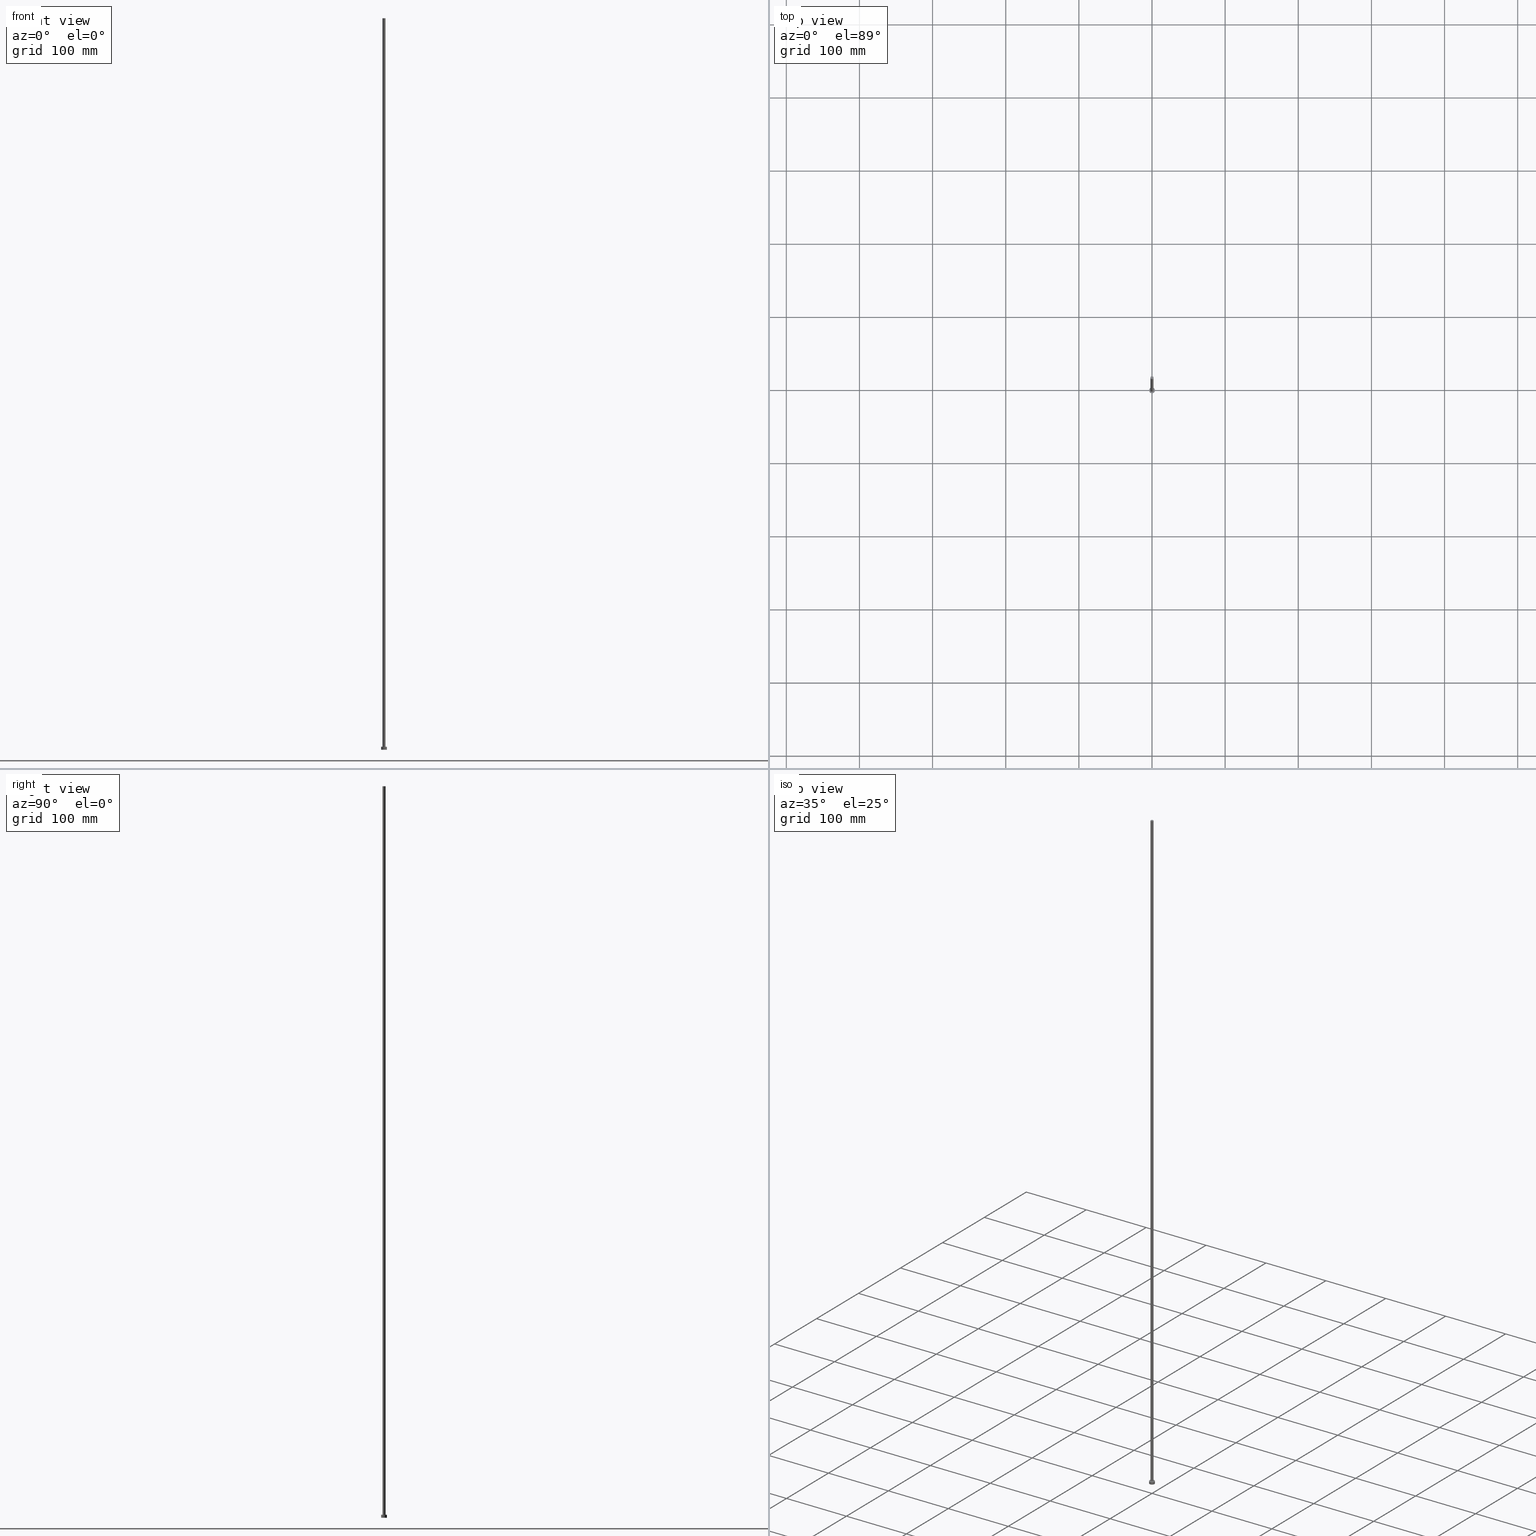
[diagram: canonical four-view strip — front | top / right | iso, engineering-drawing reading convention]
A machine part, canonical four-view strip (front | top / right | iso — engineering-drawing reading convention). The complete STEP part file that produces these views, byte-faithful:
ISO-10303-21;
HEADER;
FILE_DESCRIPTION (( 'STEP AP203' ),
    '1' );
FILE_NAME ('c64c.STEP',
    '2023-02-13T16:21:29',
    ( '' ),
    ( '' ),
    'SwSTEP 2.0',
    'SolidWorks 2019',
    '' );
FILE_SCHEMA (( 'CONFIG_CONTROL_DESIGN' ));
ENDSEC;

DATA;
#1 = VERTEX_POINT ( 'NONE', #44 ) ;
#2 = CALENDAR_DATE ( 2023, 13, 2 ) ;
#3 = VECTOR ( 'NONE', #163, 1000.000000000000000 ) ;
#4 = ORGANIZATION ( 'NEUR�EN�', 'NEUR�EN�', '' ) ;
#5 = DATE_AND_TIME ( #31, #120 ) ;
#6 = CARTESIAN_POINT ( 'NONE',  ( -4.000000000000000000, 0.000000000000000000, 4.000000000000000000 ) ) ;
#7 = DIRECTION ( 'NONE',  ( -0.000000000000000000, -0.000000000000000000, -1.000000000000000000 ) ) ;
#8 = CARTESIAN_POINT ( 'NONE',  ( 0.000000000000000000, 0.000000000000000000, 4.000000000000000000 ) ) ;
#9 = CARTESIAN_POINT ( 'NONE',  ( 0.000000000000000000, 0.000000000000000000, 1000.000000000000000 ) ) ;
#10 = DIRECTION ( 'NONE',  ( 0.000000000000000000, 0.000000000000000000, 1.000000000000000000 ) ) ;
#11 = CIRCLE ( 'NONE', #255, 4.000000000000000000 ) ;
#12 = VERTEX_POINT ( 'NONE', #121 ) ;
#13 = CC_DESIGN_APPROVAL ( #40, ( #206 ) ) ;
#14 = DATE_AND_TIME ( #2, #48 ) ;
#15 = CYLINDRICAL_SURFACE ( 'NONE', #251, 2.100000000000000089 ) ;
#16 = MANIFOLD_SOLID_BREP ( 'P�idat vysunut�m3', #74 ) ;
#17 = SHAPE_DEFINITION_REPRESENTATION ( #164, #222 ) ;
#18 = VERTEX_POINT ( 'NONE', #55 ) ;
#19 = COORDINATED_UNIVERSAL_TIME_OFFSET ( 1, 0, .AHEAD. ) ;
#20 = CARTESIAN_POINT ( 'NONE',  ( 0.000000000000000000, 0.000000000000000000, 1000.000000000000000 ) ) ;
#21 = PERSON_AND_ORGANIZATION ( #47, #4 ) ;
#22 = EDGE_CURVE ( 'NONE', #145, #1, #139, .T. ) ;
#23 = AXIS2_PLACEMENT_3D ( 'NONE', #9, #194, #81 ) ;
#24 = CARTESIAN_POINT ( 'NONE',  ( 2.100000000000000089, 2.571758278209441957E-16, 1000.000000000000000 ) ) ;
#25 = CARTESIAN_POINT ( 'NONE',  ( 0.000000000000000000, 0.000000000000000000, 4.000000000000000000 ) ) ;
#26 = ORIENTED_EDGE ( 'NONE', *, *, #29, .F. ) ;
#27 = ORIENTED_EDGE ( 'NONE', *, *, #30, .F. ) ;
#28 = DIRECTION ( 'NONE',  ( -1.000000000000000000, 0.000000000000000000, 0.000000000000000000 ) ) ;
#29 = EDGE_CURVE ( 'NONE', #115, #18, #70, .T. ) ;
#30 = EDGE_CURVE ( 'NONE', #119, #12, #130, .T. ) ;
#31 = CALENDAR_DATE ( 2023, 13, 2 ) ;
#32 = APPLICATION_PROTOCOL_DEFINITION ( 'international standard', 'config_control_design', 1994, #117 ) ;
#33 = DIRECTION ( 'NONE',  ( 1.000000000000000000, 0.000000000000000000, 0.000000000000000000 ) ) ;
#34 = FACE_OUTER_BOUND ( 'NONE', #190, .T. ) ;
#35 = UNCERTAINTY_MEASURE_WITH_UNIT (LENGTH_MEASURE( 1.000000000000000082E-05 ), #193, 'distance_accuracy_value', 'NONE');
#36 = DIRECTION ( 'NONE',  ( 1.000000000000000000, 0.000000000000000000, 0.000000000000000000 ) ) ;
#37 = CC_DESIGN_PERSON_AND_ORGANIZATION_ASSIGNMENT ( #192, #154, ( #155 ) ) ;
#38 = CARTESIAN_POINT ( 'NONE',  ( 0.000000000000000000, 0.000000000000000000, 0.000000000000000000 ) ) ;
#39 = CYLINDRICAL_SURFACE ( 'NONE', #148, 2.100000000000000089 ) ;
#40 = APPROVAL ( #111, 'NEUR�EN�' ) ;
#41 = EDGE_CURVE ( 'NONE', #51, #124, #166, .T. ) ;
#42 = CC_DESIGN_APPROVAL ( #227, ( #155 ) ) ;
#43 = VECTOR ( 'NONE', #144, 1000.000000000000000 ) ;
#44 = CARTESIAN_POINT ( 'NONE',  ( 4.000000000000000000, 4.898587196589412829E-16, 0.000000000000000000 ) ) ;
#45 = SECURITY_CLASSIFICATION_LEVEL ( 'unclassified' ) ;
#46 =( NAMED_UNIT ( * ) SI_UNIT ( $, .STERADIAN. ) SOLID_ANGLE_UNIT ( ) );
#47 = PERSON ( 'NEUR�EN�', 'NEUR�EN�', 'NEUR�EN�', ('NEUR�EN�'), ('NEUR�EN�'), ('NEUR�EN�') ) ;
#48 = LOCAL_TIME ( 17, 21, 29.00000000000000000, #19 ) ;
#49 = FACE_OUTER_BOUND ( 'NONE', #161, .T. ) ;
#50 = DIRECTION ( 'NONE',  ( 0.000000000000000000, 0.000000000000000000, 1.000000000000000000 ) ) ;
#51 = VERTEX_POINT ( 'NONE', #78 ) ;
#52 = ADVANCED_FACE ( 'NONE', ( #220 ), #72, .T. ) ;
#53 = DIRECTION ( 'NONE',  ( -0.000000000000000000, -0.000000000000000000, -1.000000000000000000 ) ) ;
#54 = DIRECTION ( 'NONE',  ( -1.000000000000000000, 0.000000000000000000, 0.000000000000000000 ) ) ;
#55 = CARTESIAN_POINT ( 'NONE',  ( -4.000000000000000000, 0.000000000000000000, 0.000000000000000000 ) ) ;
#56 = ORIENTED_EDGE ( 'NONE', *, *, #30, .T. ) ;
#57 = CIRCLE ( 'NONE', #169, 2.100000000000000089 ) ;
#58 = ORIENTED_EDGE ( 'NONE', *, *, #250, .T. ) ;
#59 = APPROVAL_STATUS ( 'not_yet_approved' ) ;
#60 = CARTESIAN_POINT ( 'NONE',  ( 0.000000000000000000, 0.000000000000000000, 4.000000000000000000 ) ) ;
#61 = CC_DESIGN_PERSON_AND_ORGANIZATION_ASSIGNMENT ( #217, #218, ( #206 ) ) ;
#62 = EDGE_LOOP ( 'NONE', ( #229, #56 ) ) ;
#63 = AXIS2_PLACEMENT_3D ( 'NONE', #247, #228, #249 ) ;
#64 = COORDINATED_UNIVERSAL_TIME_OFFSET ( 1, 0, .AHEAD. ) ;
#65 = AXIS2_PLACEMENT_3D ( 'NONE', #132, #233, #136 ) ;
#66 = APPROVAL_ROLE ( '' ) ;
#67 = APPLICATION_PROTOCOL_DEFINITION ( 'international standard', 'config_control_design', 1994, #212 ) ;
#68 = ORIENTED_EDGE ( 'NONE', *, *, #244, .F. ) ;
#69 = VECTOR ( 'NONE', #207, 1000.000000000000000 ) ;
#70 = LINE ( 'NONE', #102, #69 ) ;
#71 = DIRECTION ( 'NONE',  ( -0.000000000000000000, -0.000000000000000000, -1.000000000000000000 ) ) ;
#72 = CYLINDRICAL_SURFACE ( 'NONE', #105, 4.000000000000000000 ) ;
#73 = ORIENTED_EDGE ( 'NONE', *, *, #127, .F. ) ;
#74 = CLOSED_SHELL ( 'NONE', ( #129, #52, #89, #187, #236, #216, #181 ) ) ;
#75 = APPROVAL_PERSON_ORGANIZATION ( #138, #209, #66 ) ;
#76 = DIRECTION ( 'NONE',  ( 0.000000000000000000, 0.000000000000000000, 1.000000000000000000 ) ) ;
#77 = CC_DESIGN_PERSON_AND_ORGANIZATION_ASSIGNMENT ( #135, #176, ( #162 ) ) ;
#78 = CARTESIAN_POINT ( 'NONE',  ( 2.100000000000000089, 2.571758278209441957E-16, 4.000000000000000000 ) ) ;
#79 = ORIENTED_EDGE ( 'NONE', *, *, #22, .F. ) ;
#80 = MECHANICAL_CONTEXT ( 'NONE', #212, 'mechanical' ) ;
#81 = DIRECTION ( 'NONE',  ( 1.000000000000000000, 0.000000000000000000, -0.000000000000000000 ) ) ;
#82 = ORIENTED_EDGE ( 'NONE', *, *, #29, .T. ) ;
#83 = CARTESIAN_POINT ( 'NONE',  ( 0.000000000000000000, 0.000000000000000000, 1000.000000000000000 ) ) ;
#84 = EDGE_CURVE ( 'NONE', #12, #124, #191, .T. ) ;
#85 = CALENDAR_DATE ( 2023, 13, 2 ) ;
#86 = ORIENTED_EDGE ( 'NONE', *, *, #84, .T. ) ;
#87 = PLANE ( 'NONE',  #112 ) ;
#88 = LOCAL_TIME ( 17, 21, 29.00000000000000000, #64 ) ;
#89 = ADVANCED_FACE ( 'NONE', ( #49 ), #186, .T. ) ;
#90 = APPROVAL_DATE_TIME ( #14, #209 ) ;
#91 = CC_DESIGN_DATE_AND_TIME_ASSIGNMENT ( #113, #215, ( #206 ) ) ;
#92 = EDGE_CURVE ( 'NONE', #119, #51, #184, .T. ) ;
#93 = EDGE_LOOP ( 'NONE', ( #179, #73 ) ) ;
#94 = EDGE_CURVE ( 'NONE', #124, #51, #118, .T. ) ;
#95 = APPROVAL_ROLE ( '' ) ;
#96 = LOCAL_TIME ( 17, 21, 29.00000000000000000, #239 ) ;
#97 = CARTESIAN_POINT ( 'NONE',  ( 0.000000000000000000, 0.000000000000000000, 4.000000000000000000 ) ) ;
#98 = ORIENTED_EDGE ( 'NONE', *, *, #250, .F. ) ;
#99 = DIRECTION ( 'NONE',  ( -0.000000000000000000, -0.000000000000000000, -1.000000000000000000 ) ) ;
#100 = CARTESIAN_POINT ( 'NONE',  ( -2.100000000000000089, 0.000000000000000000, 1000.000000000000000 ) ) ;
#101 = ORIENTED_EDGE ( 'NONE', *, *, #92, .T. ) ;
#102 = CARTESIAN_POINT ( 'NONE',  ( -4.000000000000000000, 0.000000000000000000, 4.000000000000000000 ) ) ;
#103 = CC_DESIGN_PERSON_AND_ORGANIZATION_ASSIGNMENT ( #167, #219, ( #137 ) ) ;
#104 = ORIENTED_EDGE ( 'NONE', *, *, #172, .T. ) ;
#105 = AXIS2_PLACEMENT_3D ( 'NONE', #25, #53, #165 ) ;
#106 = FACE_OUTER_BOUND ( 'NONE', #62, .T. ) ;
#107 = APPROVAL_PERSON_ORGANIZATION ( #114, #227, #95 ) ;
#108 = FACE_OUTER_BOUND ( 'NONE', #238, .T. ) ;
#109 = ORIENTED_EDGE ( 'NONE', *, *, #41, .T. ) ;
#110 = AXIS2_PLACEMENT_3D ( 'NONE', #60, #230, #173 ) ;
#111 = APPROVAL_STATUS ( 'not_yet_approved' ) ;
#112 = AXIS2_PLACEMENT_3D ( 'NONE', #152, #175, #198 ) ;
#113 = DATE_AND_TIME ( #254, #232 ) ;
#114 = PERSON_AND_ORGANIZATION ( #47, #4 ) ;
#115 = VERTEX_POINT ( 'NONE', #6 ) ;
#116 = APPROVAL_STATUS ( 'not_yet_approved' ) ;
#117 = APPLICATION_CONTEXT ( 'configuration controlled 3d designs of mechanical parts and assemblies' ) ;
#118 = CIRCLE ( 'NONE', #231, 2.100000000000000089 ) ;
#119 = VERTEX_POINT ( 'NONE', #226 ) ;
#120 = LOCAL_TIME ( 17, 21, 29.00000000000000000, #235 ) ;
#121 = CARTESIAN_POINT ( 'NONE',  ( -2.100000000000000089, 0.000000000000000000, 1000.000000000000000 ) ) ;
#122 = ORIENTED_EDGE ( 'NONE', *, *, #84, .F. ) ;
#123 = EDGE_CURVE ( 'NONE', #18, #1, #11, .T. ) ;
#124 = VERTEX_POINT ( 'NONE', #204 ) ;
#125 = APPROVAL_PERSON_ORGANIZATION ( #21, #40, #153 ) ;
#126 = CARTESIAN_POINT ( 'NONE',  ( 0.000000000000000000, 0.000000000000000000, 1000.000000000000000 ) ) ;
#127 = EDGE_CURVE ( 'NONE', #1, #18, #140, .T. ) ;
#128 = DESIGN_CONTEXT ( 'detailed design', #117, 'design' ) ;
#129 = ADVANCED_FACE ( 'NONE', ( #34 ), #39, .T. ) ;
#130 = CIRCLE ( 'NONE', #146, 2.100000000000000089 ) ;
#131 = COORDINATED_UNIVERSAL_TIME_OFFSET ( 1, 0, .AHEAD. ) ;
#132 = CARTESIAN_POINT ( 'NONE',  ( 0.000000000000000000, 0.000000000000000000, 0.000000000000000000 ) ) ;
#133 = PERSON_AND_ORGANIZATION ( #47, #4 ) ;
#134 = ORIENTED_EDGE ( 'NONE', *, *, #172, .F. ) ;
#135 = PERSON_AND_ORGANIZATION ( #47, #4 ) ;
#136 = DIRECTION ( 'NONE',  ( 1.000000000000000000, 0.000000000000000000, 0.000000000000000000 ) ) ;
#137 = PRODUCT ( 'c64c', 'c64c', '', ( #80 ) ) ;
#138 = PERSON_AND_ORGANIZATION ( #47, #4 ) ;
#139 = LINE ( 'NONE', #203, #195 ) ;
#140 = CIRCLE ( 'NONE', #177, 4.000000000000000000 ) ;
#141 = DIRECTION ( 'NONE',  ( 0.000000000000000000, 0.000000000000000000, 1.000000000000000000 ) ) ;
#142 = CARTESIAN_POINT ( 'NONE',  ( 0.000000000000000000, 0.000000000000000000, 4.000000000000000000 ) ) ;
#143 = EDGE_LOOP ( 'NONE', ( #188, #208 ) ) ;
#144 = DIRECTION ( 'NONE',  ( -0.000000000000000000, -0.000000000000000000, -1.000000000000000000 ) ) ;
#145 = VERTEX_POINT ( 'NONE', #185 ) ;
#146 = AXIS2_PLACEMENT_3D ( 'NONE', #189, #221, #158 ) ;
#147 = PLANE ( 'NONE',  #237 ) ;
#148 = AXIS2_PLACEMENT_3D ( 'NONE', #126, #99, #28 ) ;
#149 = CARTESIAN_POINT ( 'NONE',  ( 0.000000000000000000, 0.000000000000000000, 0.000000000000000000 ) ) ;
#150 = FACE_BOUND ( 'NONE', #143, .T. ) ;
#151 = FACE_OUTER_BOUND ( 'NONE', #213, .T. ) ;
#152 = CARTESIAN_POINT ( 'NONE',  ( 0.000000000000000000, 0.000000000000000000, 4.000000000000000000 ) ) ;
#153 = APPROVAL_ROLE ( '' ) ;
#154 = PERSON_AND_ORGANIZATION_ROLE ( 'creator' ) ;
#155 = PRODUCT_DEFINITION ( 'NEZN�M�', '', #162, #128 ) ;
#156 = PERSON_AND_ORGANIZATION_ROLE ( 'design_supplier' ) ;
#157 = CC_DESIGN_SECURITY_CLASSIFICATION ( #206, ( #162 ) ) ;
#158 = DIRECTION ( 'NONE',  ( 1.000000000000000000, 0.000000000000000000, 0.000000000000000000 ) ) ;
#159 = CC_DESIGN_PERSON_AND_ORGANIZATION_ASSIGNMENT ( #133, #156, ( #162 ) ) ;
#160 = DIRECTION ( 'NONE',  ( 0.000000000000000000, 0.000000000000000000, 1.000000000000000000 ) ) ;
#161 = EDGE_LOOP ( 'NONE', ( #79, #134, #82, #205 ) ) ;
#162 = PRODUCT_DEFINITION_FORMATION_WITH_SPECIFIED_SOURCE ( 'LIBOVOLN�', '', #137, .NOT_KNOWN. ) ;
#163 = DIRECTION ( 'NONE',  ( -0.000000000000000000, -0.000000000000000000, -1.000000000000000000 ) ) ;
#164 = PRODUCT_DEFINITION_SHAPE ( 'NONE', 'NONE',  #155 ) ;
#165 = DIRECTION ( 'NONE',  ( -1.000000000000000000, 0.000000000000000000, 0.000000000000000000 ) ) ;
#166 = CIRCLE ( 'NONE', #225, 2.100000000000000089 ) ;
#167 = PERSON_AND_ORGANIZATION ( #47, #4 ) ;
#168 = DIRECTION ( 'NONE',  ( 1.000000000000000000, 0.000000000000000000, 0.000000000000000000 ) ) ;
#169 = AXIS2_PLACEMENT_3D ( 'NONE', #83, #171, #168 ) ;
#170 = ORIENTED_EDGE ( 'NONE', *, *, #22, .T. ) ;
#171 = DIRECTION ( 'NONE',  ( 0.000000000000000000, 0.000000000000000000, 1.000000000000000000 ) ) ;
#172 = EDGE_CURVE ( 'NONE', #115, #145, #202, .T. ) ;
#173 = DIRECTION ( 'NONE',  ( 1.000000000000000000, 0.000000000000000000, 0.000000000000000000 ) ) ;
#174 = APPROVAL_DATE_TIME ( #248, #227 ) ;
#175 = DIRECTION ( 'NONE',  ( 0.000000000000000000, 0.000000000000000000, 1.000000000000000000 ) ) ;
#176 = PERSON_AND_ORGANIZATION_ROLE ( 'creator' ) ;
#177 = AXIS2_PLACEMENT_3D ( 'NONE', #242, #50, #36 ) ;
#178 = DIRECTION ( 'NONE',  ( -1.000000000000000000, 0.000000000000000000, 0.000000000000000000 ) ) ;
#179 = ORIENTED_EDGE ( 'NONE', *, *, #123, .F. ) ;
#180 = DATE_TIME_ROLE ( 'creation_date' ) ;
#181 = ADVANCED_FACE ( 'NONE', ( #106 ), #211, .T. ) ;
#182 = AXIS2_PLACEMENT_3D ( 'NONE', #97, #71, #54 ) ;
#183 = ORIENTED_EDGE ( 'NONE', *, *, #92, .F. ) ;
#184 = LINE ( 'NONE', #24, #43 ) ;
#185 = CARTESIAN_POINT ( 'NONE',  ( 4.000000000000000000, 4.898587196589412829E-16, 4.000000000000000000 ) ) ;
#186 = CYLINDRICAL_SURFACE ( 'NONE', #182, 4.000000000000000000 ) ;
#187 = ADVANCED_FACE ( 'NONE', ( #150, #108 ), #87, .T. ) ;
#188 = ORIENTED_EDGE ( 'NONE', *, *, #94, .F. ) ;
#189 = CARTESIAN_POINT ( 'NONE',  ( 0.000000000000000000, 0.000000000000000000, 1000.000000000000000 ) ) ;
#190 = EDGE_LOOP ( 'NONE', ( #27, #101, #109, #122 ) ) ;
#191 = LINE ( 'NONE', #100, #3 ) ;
#192 = PERSON_AND_ORGANIZATION ( #47, #4 ) ;
#193 =( LENGTH_UNIT ( ) NAMED_UNIT ( * ) SI_UNIT ( .MILLI., .METRE. ) );
#194 = DIRECTION ( 'NONE',  ( 0.000000000000000000, 0.000000000000000000, 1.000000000000000000 ) ) ;
#195 = VECTOR ( 'NONE', #7, 1000.000000000000000 ) ;
#196 = APPROVAL_DATE_TIME ( #197, #40 ) ;
#197 = DATE_AND_TIME ( #199, #96 ) ;
#198 = DIRECTION ( 'NONE',  ( 1.000000000000000000, 0.000000000000000000, -0.000000000000000000 ) ) ;
#199 = CALENDAR_DATE ( 2023, 13, 2 ) ;
#200 = ORIENTED_EDGE ( 'NONE', *, *, #127, .T. ) ;
#201 = EDGE_LOOP ( 'NONE', ( #98, #170, #200, #26 ) ) ;
#202 = CIRCLE ( 'NONE', #110, 4.000000000000000000 ) ;
#203 = CARTESIAN_POINT ( 'NONE',  ( 4.000000000000000000, 4.898587196589412829E-16, 4.000000000000000000 ) ) ;
#204 = CARTESIAN_POINT ( 'NONE',  ( -2.100000000000000089, 0.000000000000000000, 4.000000000000000000 ) ) ;
#205 = ORIENTED_EDGE ( 'NONE', *, *, #123, .T. ) ;
#206 = SECURITY_CLASSIFICATION ( '', '', #45 ) ;
#207 = DIRECTION ( 'NONE',  ( -0.000000000000000000, -0.000000000000000000, -1.000000000000000000 ) ) ;
#208 = ORIENTED_EDGE ( 'NONE', *, *, #41, .F. ) ;
#209 = APPROVAL ( #116, 'NEUR�EN�' ) ;
#210 =( NAMED_UNIT ( * ) PLANE_ANGLE_UNIT ( ) SI_UNIT ( $, .RADIAN. ) );
#211 = PLANE ( 'NONE',  #23 ) ;
#212 = APPLICATION_CONTEXT ( 'configuration controlled 3d designs of mechanical parts and assemblies' ) ;
#213 = EDGE_LOOP ( 'NONE', ( #183, #68, #86, #245 ) ) ;
#214 = CC_DESIGN_APPROVAL ( #209, ( #162 ) ) ;
#215 = DATE_TIME_ROLE ( 'classification_date' ) ;
#216 = ADVANCED_FACE ( 'NONE', ( #151 ), #15, .T. ) ;
#217 = PERSON_AND_ORGANIZATION ( #47, #4 ) ;
#218 = PERSON_AND_ORGANIZATION_ROLE ( 'classification_officer' ) ;
#219 = PERSON_AND_ORGANIZATION_ROLE ( 'design_owner' ) ;
#220 = FACE_OUTER_BOUND ( 'NONE', #201, .T. ) ;
#221 = DIRECTION ( 'NONE',  ( 0.000000000000000000, 0.000000000000000000, 1.000000000000000000 ) ) ;
#222 = ADVANCED_BREP_SHAPE_REPRESENTATION ( 'c64c', ( #16, #65 ), #223 ) ;
#223 =( GEOMETRIC_REPRESENTATION_CONTEXT ( 3 ) GLOBAL_UNCERTAINTY_ASSIGNED_CONTEXT ( ( #35 ) ) GLOBAL_UNIT_ASSIGNED_CONTEXT ( ( #193, #210, #46 ) ) REPRESENTATION_CONTEXT ( 'NONE', 'WORKASPACE' ) );
#224 = DIRECTION ( 'NONE',  ( 1.000000000000000000, 0.000000000000000000, 0.000000000000000000 ) ) ;
#225 = AXIS2_PLACEMENT_3D ( 'NONE', #8, #76, #33 ) ;
#226 = CARTESIAN_POINT ( 'NONE',  ( 2.100000000000000089, 2.571758278209441957E-16, 1000.000000000000000 ) ) ;
#227 = APPROVAL ( #59, 'NEUR�EN�' ) ;
#228 = DIRECTION ( 'NONE',  ( 0.000000000000000000, 0.000000000000000000, 1.000000000000000000 ) ) ;
#229 = ORIENTED_EDGE ( 'NONE', *, *, #244, .T. ) ;
#230 = DIRECTION ( 'NONE',  ( 0.000000000000000000, 0.000000000000000000, 1.000000000000000000 ) ) ;
#231 = AXIS2_PLACEMENT_3D ( 'NONE', #142, #141, #224 ) ;
#232 = LOCAL_TIME ( 17, 21, 29.00000000000000000, #131 ) ;
#233 = DIRECTION ( 'NONE',  ( 0.000000000000000000, 0.000000000000000000, 1.000000000000000000 ) ) ;
#234 = CIRCLE ( 'NONE', #63, 4.000000000000000000 ) ;
#235 = COORDINATED_UNIVERSAL_TIME_OFFSET ( 1, 0, .AHEAD. ) ;
#236 = ADVANCED_FACE ( 'NONE', ( #240 ), #147, .F. ) ;
#237 = AXIS2_PLACEMENT_3D ( 'NONE', #149, #10, #246 ) ;
#238 = EDGE_LOOP ( 'NONE', ( #104, #58 ) ) ;
#239 = COORDINATED_UNIVERSAL_TIME_OFFSET ( 1, 0, .AHEAD. ) ;
#240 = FACE_OUTER_BOUND ( 'NONE', #93, .T. ) ;
#241 = DIRECTION ( 'NONE',  ( 1.000000000000000000, 0.000000000000000000, 0.000000000000000000 ) ) ;
#242 = CARTESIAN_POINT ( 'NONE',  ( 0.000000000000000000, 0.000000000000000000, 0.000000000000000000 ) ) ;
#243 = PRODUCT_RELATED_PRODUCT_CATEGORY ( 'detail', '', ( #137 ) ) ;
#244 = EDGE_CURVE ( 'NONE', #12, #119, #57, .T. ) ;
#245 = ORIENTED_EDGE ( 'NONE', *, *, #94, .T. ) ;
#246 = DIRECTION ( 'NONE',  ( 1.000000000000000000, 0.000000000000000000, -0.000000000000000000 ) ) ;
#247 = CARTESIAN_POINT ( 'NONE',  ( 0.000000000000000000, 0.000000000000000000, 4.000000000000000000 ) ) ;
#248 = DATE_AND_TIME ( #85, #88 ) ;
#249 = DIRECTION ( 'NONE',  ( 1.000000000000000000, 0.000000000000000000, 0.000000000000000000 ) ) ;
#250 = EDGE_CURVE ( 'NONE', #145, #115, #234, .T. ) ;
#251 = AXIS2_PLACEMENT_3D ( 'NONE', #20, #252, #178 ) ;
#252 = DIRECTION ( 'NONE',  ( -0.000000000000000000, -0.000000000000000000, -1.000000000000000000 ) ) ;
#253 = CC_DESIGN_DATE_AND_TIME_ASSIGNMENT ( #5, #180, ( #155 ) ) ;
#254 = CALENDAR_DATE ( 2023, 13, 2 ) ;
#255 = AXIS2_PLACEMENT_3D ( 'NONE', #38, #160, #241 ) ;
ENDSEC;
END-ISO-10303-21;
